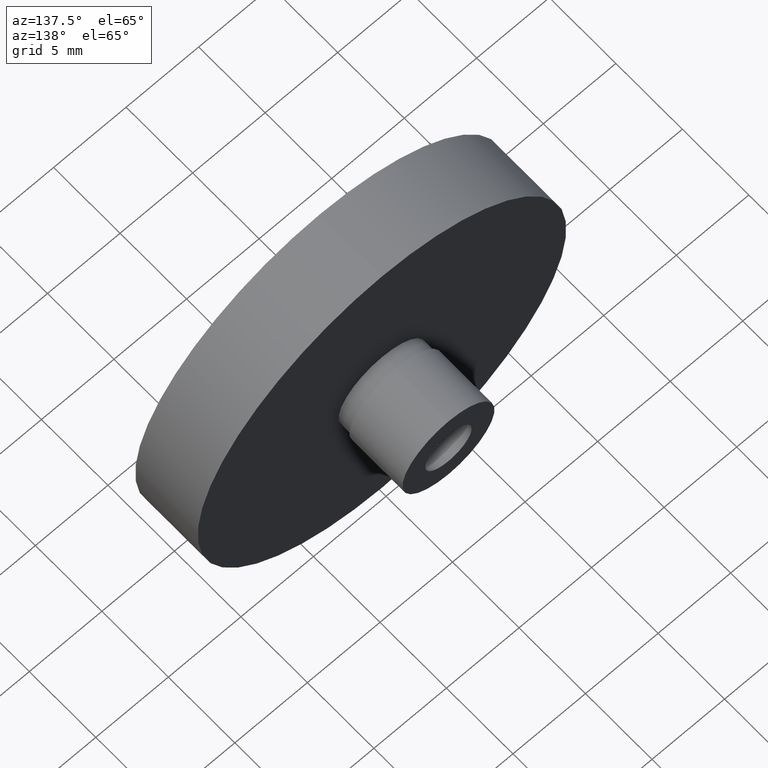
[diagram: clean part render]
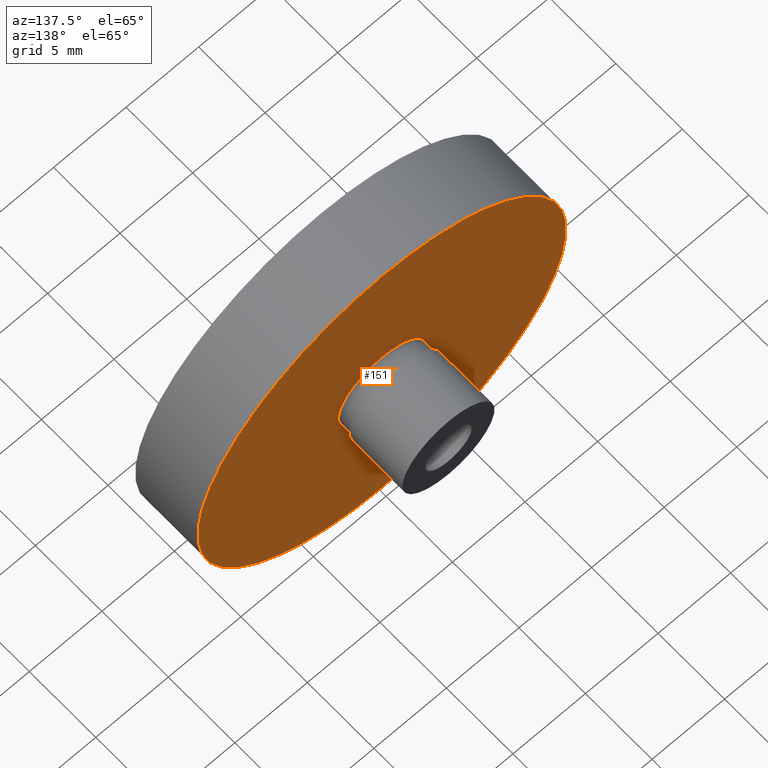
[diagram: same view with one face highlighted and labeled with its STEP entity id]
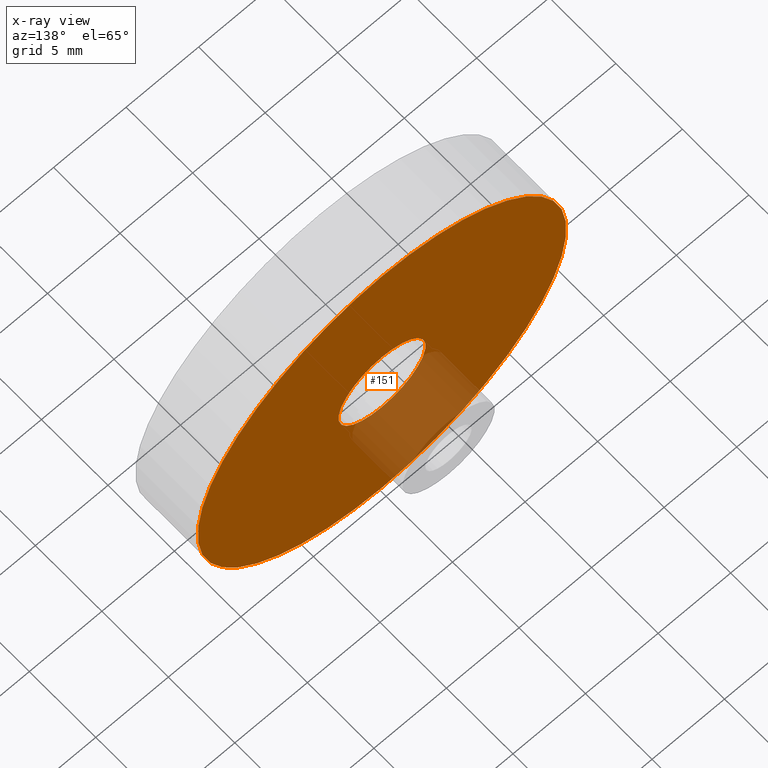
[diagram: x-ray of the same camera — body ghosted, the highlighted face saturated]
A machine part, auxiliary view. The second image highlights one B-rep face of the part: STEP entity #151.
The next image is the same camera in x-ray: the body ghosted, the highlighted face saturated — about 13% of this face is hidden behind the body in this view.
In plain terms, the highlighted planar face has unit normal (0, -1, 0).
Its self-contained STEP definition (entity closure, byte-faithful):
#3 = VERTEX_POINT ( 'NONE', #376 ) ;
#5 = CARTESIAN_POINT ( 'NONE',  ( 0.0000000000000000000, 4.700000000000002800, 0.0000000000000000000 ) ) ;
#6 = PLANE ( 'NONE',  #341 ) ;
#17 = CIRCLE ( 'NONE', #132, 12.70000000000000500 ) ;
#22 = AXIS2_PLACEMENT_3D ( 'NONE', #42, #276, #272 ) ;
#26 = ORIENTED_EDGE ( 'NONE', *, *, #281, .F. ) ;
#30 = EDGE_LOOP ( 'NONE', ( #164, #26 ) ) ;
#33 = CIRCLE ( 'NONE', #247, 3.000000000000004400 ) ;
#42 = CARTESIAN_POINT ( 'NONE',  ( 0.0000000000000000000, 4.699999999999995700, 0.0000000000000000000 ) ) ;
#47 = DIRECTION ( 'NONE',  ( 0.0000000000000000000, 0.0000000000000000000, 1.000000000000000000 ) ) ;
#56 = CARTESIAN_POINT ( 'NONE',  ( 0.0000000000000000000, 4.699999999999995700, 0.0000000000000000000 ) ) ;
#63 = EDGE_CURVE ( 'NONE', #215, #105, #323, .T. ) ;
#72 = DIRECTION ( 'NONE',  ( 0.0000000000000000000, -0.0000000000000000000, -1.000000000000000000 ) ) ;
#79 = VERTEX_POINT ( 'NONE', #229 ) ;
#92 = DIRECTION ( 'NONE',  ( -0.0000000000000000000, 1.000000000000000000, -0.0000000000000000000 ) ) ;
#101 = CARTESIAN_POINT ( 'NONE',  ( 1.555301434917139000E-015, 4.700000000000002800, -12.70000000000000500 ) ) ;
#105 = VERTEX_POINT ( 'NONE', #101 ) ;
#106 = DIRECTION ( 'NONE',  ( 0.0000000000000000000, 0.0000000000000000000, 1.000000000000000000 ) ) ;
#126 = FACE_BOUND ( 'NONE', #30, .T. ) ;
#131 = FACE_OUTER_BOUND ( 'NONE', #186, .T. ) ;
#132 = AXIS2_PLACEMENT_3D ( 'NONE', #390, #398, #47 ) ;
#151 = ADVANCED_FACE ( 'NONE', ( #126, #131 ), #6, .F. ) ;
#164 = ORIENTED_EDGE ( 'NONE', *, *, #383, .F. ) ;
#186 = EDGE_LOOP ( 'NONE', ( #306, #382 ) ) ;
#188 = CIRCLE ( 'NONE', #22, 3.000000000000004400 ) ;
#197 = DIRECTION ( 'NONE',  ( 0.0000000000000000000, -1.000000000000000000, 0.0000000000000000000 ) ) ;
#215 = VERTEX_POINT ( 'NONE', #385 ) ;
#225 = AXIS2_PLACEMENT_3D ( 'NONE', #5, #265, #106 ) ;
#229 = CARTESIAN_POINT ( 'NONE',  ( 0.0000000000000000000, 4.699999999999995700, 3.000000000000004400 ) ) ;
#247 = AXIS2_PLACEMENT_3D ( 'NONE', #56, #92, #312 ) ;
#263 = EDGE_CURVE ( 'NONE', #105, #215, #17, .T. ) ;
#265 = DIRECTION ( 'NONE',  ( -0.0000000000000000000, 1.000000000000000000, -0.0000000000000000000 ) ) ;
#272 = DIRECTION ( 'NONE',  ( 0.0000000000000000000, 0.0000000000000000000, 1.000000000000000000 ) ) ;
#276 = DIRECTION ( 'NONE',  ( -0.0000000000000000000, 1.000000000000000000, -0.0000000000000000000 ) ) ;
#281 = EDGE_CURVE ( 'NONE', #3, #79, #188, .T. ) ;
#306 = ORIENTED_EDGE ( 'NONE', *, *, #63, .T. ) ;
#312 = DIRECTION ( 'NONE',  ( 0.0000000000000000000, 0.0000000000000000000, 1.000000000000000000 ) ) ;
#323 = CIRCLE ( 'NONE', #225, 12.70000000000000500 ) ;
#341 = AXIS2_PLACEMENT_3D ( 'NONE', #384, #197, #72 ) ;
#376 = CARTESIAN_POINT ( 'NONE',  ( 3.673940397442064800E-016, 4.699999999999995700, -3.000000000000004400 ) ) ;
#382 = ORIENTED_EDGE ( 'NONE', *, *, #263, .T. ) ;
#383 = EDGE_CURVE ( 'NONE', #79, #3, #33, .T. ) ;
#384 = CARTESIAN_POINT ( 'NONE',  ( 3.175000000000004300, 4.699999999999999300, 0.0000000000000000000 ) ) ;
#385 = CARTESIAN_POINT ( 'NONE',  ( 0.0000000000000000000, 4.700000000000002800, 12.70000000000000500 ) ) ;
#390 = CARTESIAN_POINT ( 'NONE',  ( 0.0000000000000000000, 4.700000000000002800, 0.0000000000000000000 ) ) ;
#398 = DIRECTION ( 'NONE',  ( -0.0000000000000000000, 1.000000000000000000, -0.0000000000000000000 ) ) ;